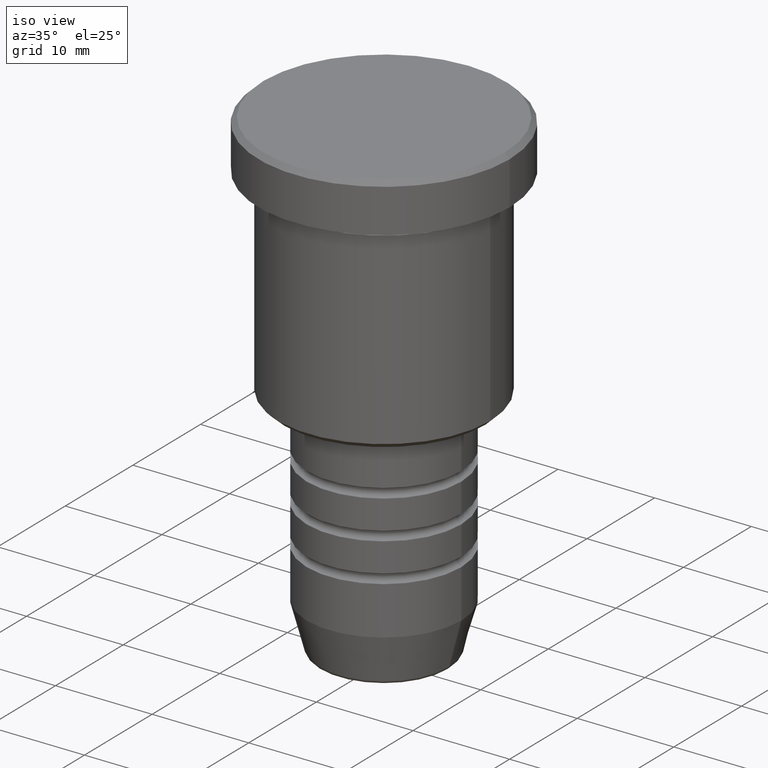
[diagram: clean part render]
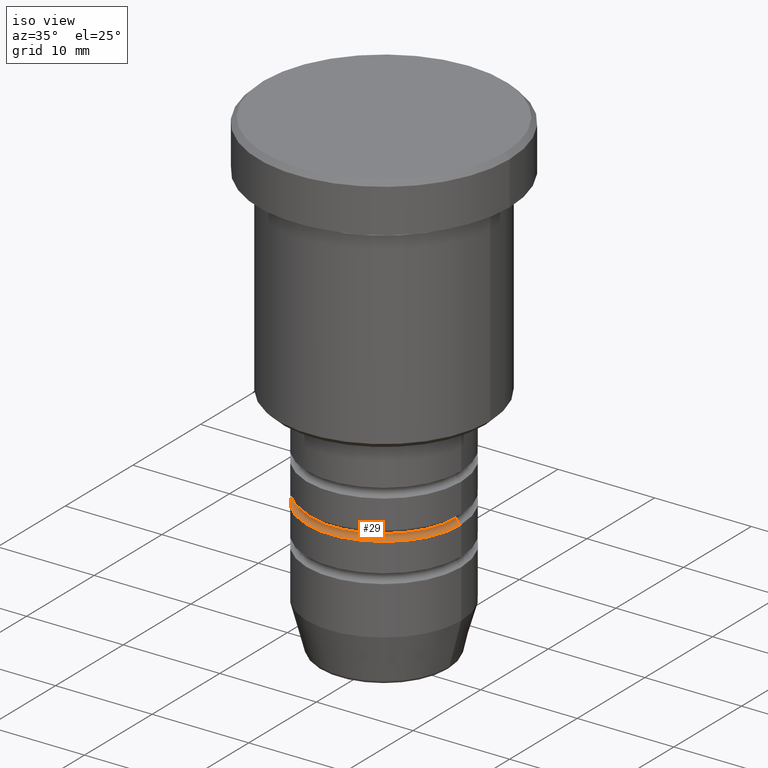
[diagram: same view with one face highlighted and labeled with its STEP entity id]
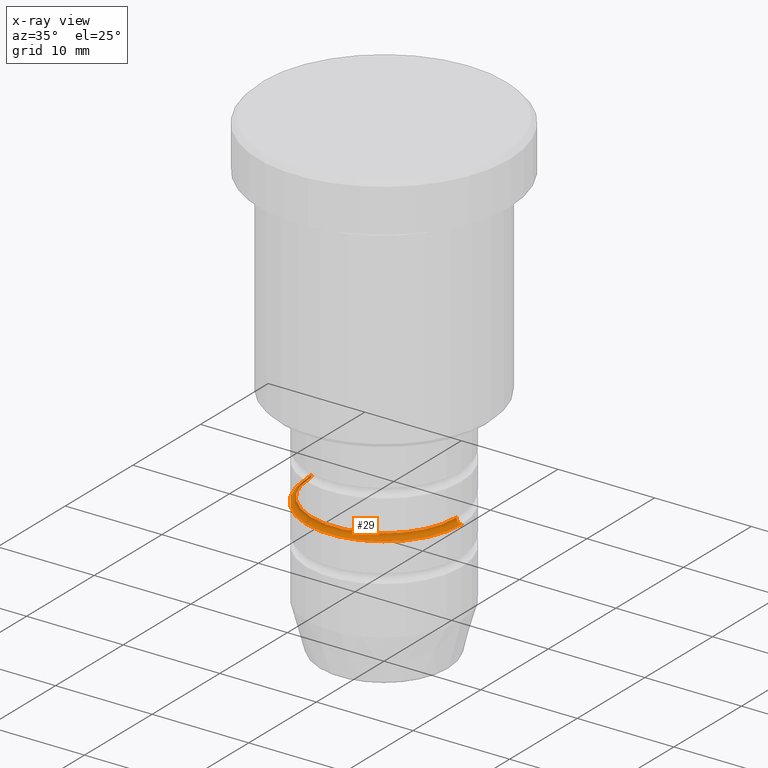
[diagram: x-ray of the same camera — body ghosted, the highlighted face saturated]
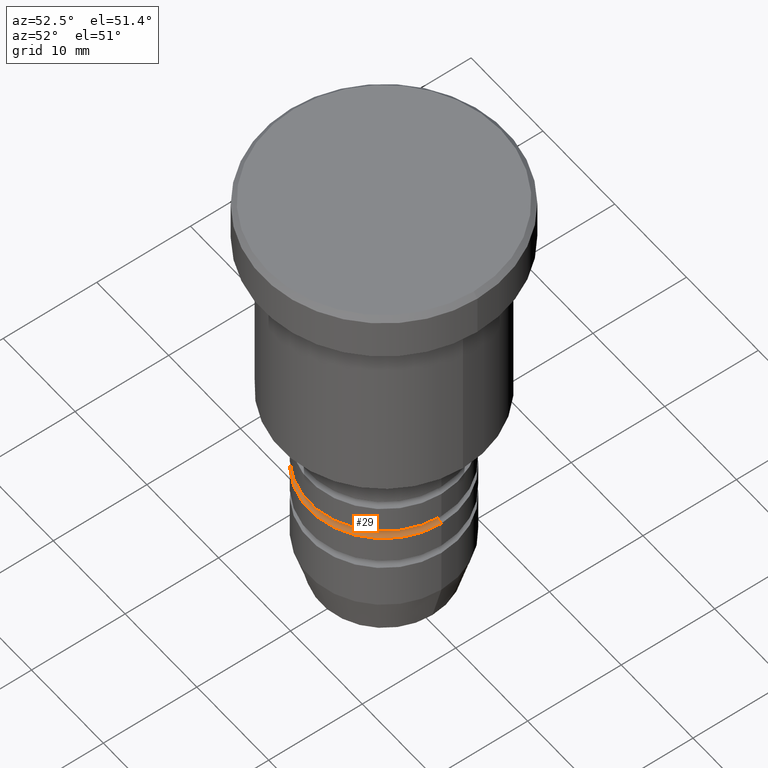
[diagram: same view with one face highlighted and labeled with its STEP entity id]
A machine part, iso view. The second image highlights one B-rep face of the part: STEP entity #29.
The next image is the same camera in x-ray: the body ghosted, the highlighted face saturated — about 2% of this face is hidden behind the body in this view.
A second angle (auxiliary view) of the same face is appended — the face is thin or edge-on in the first view.
In plain terms, the highlighted toroidal blend (fillet) surface has major radius 8 mm and minor (blend) radius 0.5 mm.
Its self-contained STEP definition (entity closure, byte-faithful):
#24 = CARTESIAN_POINT ( 'NONE',  ( 0.000000000000000000, 0.000000000000000000, -35.50000000000000000 ) ) ;
#29 = ADVANCED_FACE ( 'NONE', ( #947 ), #108, .F. ) ;
#43 = EDGE_CURVE ( 'NONE', #63, #555, #907, .T. ) ;
#63 = VERTEX_POINT ( 'NONE', #939 ) ;
#87 = ORIENTED_EDGE ( 'NONE', *, *, #43, .F. ) ;
#108 = TOROIDAL_SURFACE ( 'NONE', #150, 8.000000000000001776, 0.5000000000000000000 ) ;
#115 = DIRECTION ( 'NONE',  ( -0.000000000000000000, -0.000000000000000000, 1.000000000000000000 ) ) ;
#150 = AXIS2_PLACEMENT_3D ( 'NONE', #24, #115, #1108 ) ;
#198 = CARTESIAN_POINT ( 'NONE',  ( 8.000000000000000000, 0.000000000000000000, -36.00000000000000000 ) ) ;
#200 = DIRECTION ( 'NONE',  ( -0.000000000000000000, -0.000000000000000000, 1.000000000000000000 ) ) ;
#226 = DIRECTION ( 'NONE',  ( 0.000000000000000000, -1.000000000000000000, 0.000000000000000000 ) ) ;
#252 = AXIS2_PLACEMENT_3D ( 'NONE', #746, #200, #393 ) ;
#373 = ORIENTED_EDGE ( 'NONE', *, *, #1031, .F. ) ;
#393 = DIRECTION ( 'NONE',  ( 1.000000000000000000, 0.000000000000000000, 0.000000000000000000 ) ) ;
#436 = ORIENTED_EDGE ( 'NONE', *, *, #1144, .T. ) ;
#440 = AXIS2_PLACEMENT_3D ( 'NONE', #876, #882, #982 ) ;
#496 = DIRECTION ( 'NONE',  ( -1.000000000000000000, 1.224646799147353454E-16, 0.000000000000000000 ) ) ;
#555 = VERTEX_POINT ( 'NONE', #581 ) ;
#581 = CARTESIAN_POINT ( 'NONE',  ( 7.500000000000001776, 0.000000000000000000, -35.50000000000000000 ) ) ;
#610 = VERTEX_POINT ( 'NONE', #1137 ) ;
#677 = CARTESIAN_POINT ( 'NONE',  ( -8.000000000000001776, 9.797174393178827630E-16, -35.50000000000000000 ) ) ;
#691 = CIRCLE ( 'NONE', #1056, 0.5000000000000004441 ) ;
#737 = VERTEX_POINT ( 'NONE', #198 ) ;
#746 = CARTESIAN_POINT ( 'NONE',  ( 0.000000000000000000, 0.000000000000000000, -35.50000000000000000 ) ) ;
#787 = DIRECTION ( 'NONE',  ( 1.224646799147353207E-16, 1.000000000000000000, 0.000000000000000000 ) ) ;
#876 = CARTESIAN_POINT ( 'NONE',  ( 0.000000000000000000, 0.000000000000000000, -36.00000000000000000 ) ) ;
#882 = DIRECTION ( 'NONE',  ( -0.000000000000000000, -0.000000000000000000, 1.000000000000000000 ) ) ;
#907 = CIRCLE ( 'NONE', #252, 7.500000000000001776 ) ;
#939 = CARTESIAN_POINT ( 'NONE',  ( -7.500000000000001776, 9.491012693391987787E-16, -35.50000000000000000 ) ) ;
#947 = FACE_OUTER_BOUND ( 'NONE', #1174, .T. ) ;
#974 = DIRECTION ( 'NONE',  ( 0.000000000000000000, 0.000000000000000000, -1.000000000000000000 ) ) ;
#982 = DIRECTION ( 'NONE',  ( 1.000000000000000000, 0.000000000000000000, 0.000000000000000000 ) ) ;
#1031 = EDGE_CURVE ( 'NONE', #555, #737, #1183, .T. ) ;
#1046 = EDGE_CURVE ( 'NONE', #610, #737, #1114, .T. ) ;
#1056 = AXIS2_PLACEMENT_3D ( 'NONE', #677, #787, #496 ) ;
#1078 = ORIENTED_EDGE ( 'NONE', *, *, #1046, .T. ) ;
#1108 = DIRECTION ( 'NONE',  ( 1.000000000000000000, 0.000000000000000000, 0.000000000000000000 ) ) ;
#1114 = CIRCLE ( 'NONE', #440, 8.000000000000000000 ) ;
#1130 = AXIS2_PLACEMENT_3D ( 'NONE', #1131, #226, #974 ) ;
#1131 = CARTESIAN_POINT ( 'NONE',  ( 8.000000000000001776, 0.000000000000000000, -35.50000000000000000 ) ) ;
#1137 = CARTESIAN_POINT ( 'NONE',  ( -8.000000000000000000, 9.797174393178825657E-16, -36.00000000000000000 ) ) ;
#1144 = EDGE_CURVE ( 'NONE', #63, #610, #691, .T. ) ;
#1174 = EDGE_LOOP ( 'NONE', ( #87, #436, #1078, #373 ) ) ;
#1183 = CIRCLE ( 'NONE', #1130, 0.5000000000000004441 ) ;